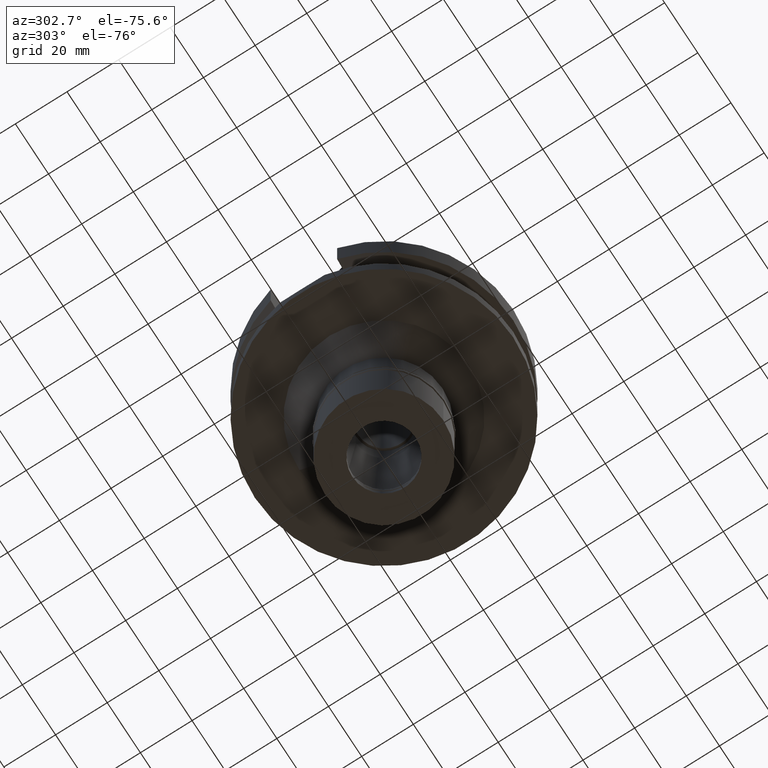
[diagram: clean part render]
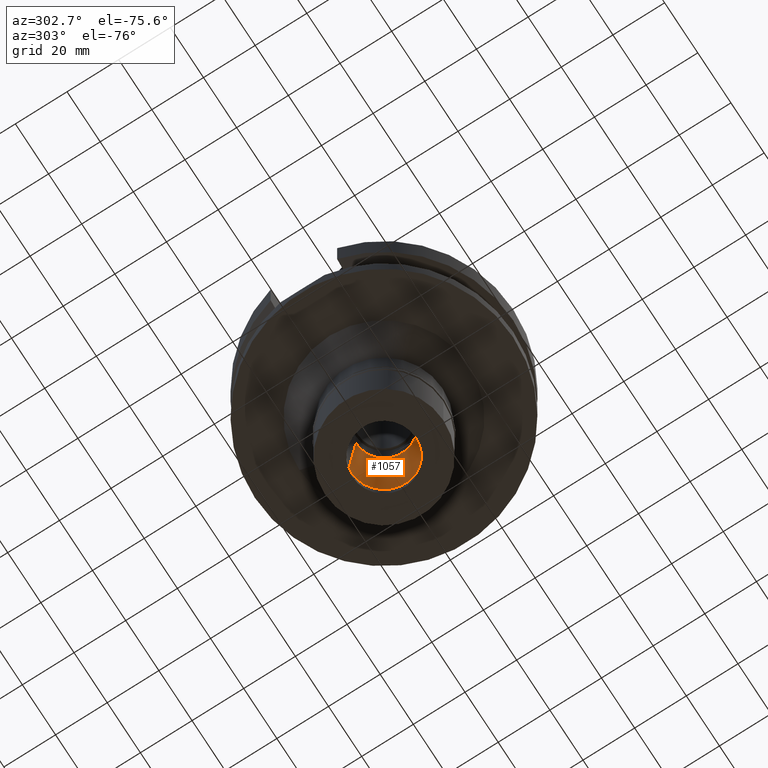
[diagram: same view with one face highlighted and labeled with its STEP entity id]
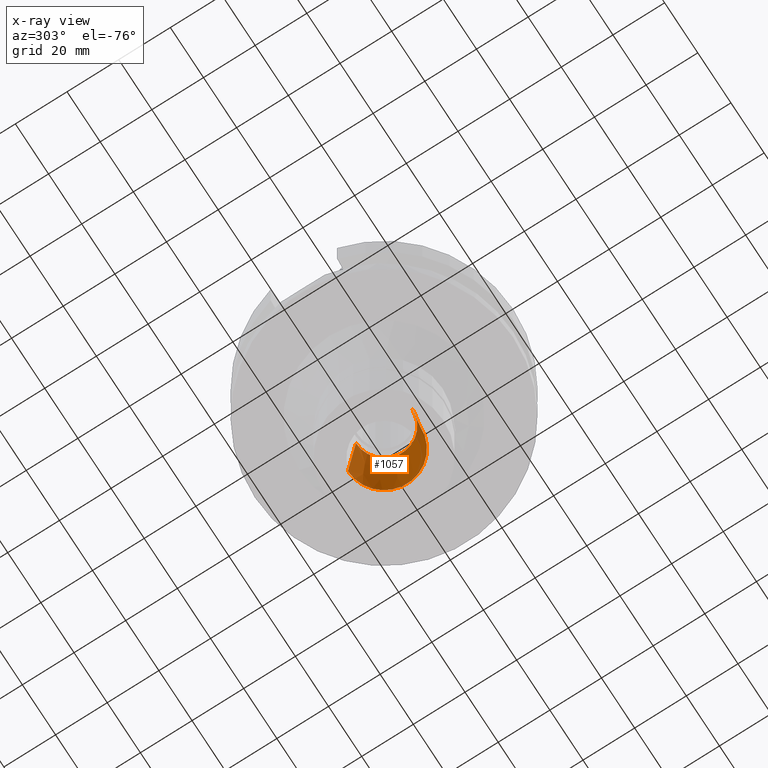
[diagram: x-ray of the same camera — body ghosted, the highlighted face saturated]
A machine part, auxiliary view. The second image highlights one B-rep face of the part: STEP entity #1057.
The next image is the same camera in x-ray: the body ghosted, the highlighted face saturated — about 3% of this face is hidden behind the body in this view.
In plain terms, the highlighted conical surface has half-angle 6 deg.
Its self-contained STEP definition (entity closure, byte-faithful):
#310 = CIRCLE ( 'NONE', #1655, 10.84687294202000096 ) ;
#490 = CARTESIAN_POINT ( 'NONE',  ( 0.0000000000000000000, 14.00000000000000000, -79.00000000000000000 ) ) ;
#498 = FACE_OUTER_BOUND ( 'NONE', #2359, .T. ) ;
#525 = VECTOR ( 'NONE', #547, 1000.000000000000227 ) ;
#547 = DIRECTION ( 'NONE',  ( 0.0000000000000000000, 0.1045284632676965891, 0.9945218953682687379 ) ) ;
#600 = CARTESIAN_POINT ( 'NONE',  ( 0.0000000000000000000, 10.84687294202000096, -49.00000000000000000 ) ) ;
#690 = ORIENTED_EDGE ( 'NONE', *, *, #1857, .T. ) ;
#788 = DIRECTION ( 'NONE',  ( 0.0000000000000000000, -0.1045284632676965891, 0.9945218953682687379 ) ) ;
#930 = ORIENTED_EDGE ( 'NONE', *, *, #2379, .T. ) ;
#938 = DIRECTION ( 'NONE',  ( 0.0000000000000000000, 1.000000000000000000, 0.0000000000000000000 ) ) ;
#1000 = CARTESIAN_POINT ( 'NONE',  ( 0.0000000000000000000, 0.0000000000000000000, -64.00000000000000000 ) ) ;
#1020 = VERTEX_POINT ( 'NONE', #2452 ) ;
#1057 = ADVANCED_FACE ( 'NONE', ( #498 ), #1709, .F. ) ;
#1068 = CARTESIAN_POINT ( 'NONE',  ( 0.0000000000000000000, -10.84687294202000096, -49.00000000000000000 ) ) ;
#1078 = VECTOR ( 'NONE', #788, 1000.000000000000227 ) ;
#1140 = CARTESIAN_POINT ( 'NONE',  ( 0.0000000000000000000, 0.0000000000000000000, -79.00000000000000000 ) ) ;
#1197 = DIRECTION ( 'NONE',  ( 0.0000000000000000000, 0.0000000000000000000, -1.000000000000000000 ) ) ;
#1253 = DIRECTION ( 'NONE',  ( 0.0000000000000000000, -1.000000000000000000, 0.0000000000000000000 ) ) ;
#1263 = LINE ( 'NONE', #2691, #525 ) ;
#1281 = CARTESIAN_POINT ( 'NONE',  ( 0.0000000000000000000, 14.00000000000000000, -79.00000000000000000 ) ) ;
#1575 = AXIS2_PLACEMENT_3D ( 'NONE', #1000, #1939, #1253 ) ;
#1655 = AXIS2_PLACEMENT_3D ( 'NONE', #2512, #2996, #2768 ) ;
#1691 = LINE ( 'NONE', #1281, #1078 ) ;
#1700 = VERTEX_POINT ( 'NONE', #490 ) ;
#1709 = CONICAL_SURFACE ( 'NONE', #1575, 12.42343647100999959, 0.1047197551196402399 ) ;
#1857 = EDGE_CURVE ( 'NONE', #2946, #2097, #310, .T. ) ;
#1939 = DIRECTION ( 'NONE',  ( 0.0000000000000000000, 0.0000000000000000000, -1.000000000000000000 ) ) ;
#2097 = VERTEX_POINT ( 'NONE', #600 ) ;
#2134 = ORIENTED_EDGE ( 'NONE', *, *, #2334, .F. ) ;
#2161 = ORIENTED_EDGE ( 'NONE', *, *, #2190, .T. ) ;
#2190 = EDGE_CURVE ( 'NONE', #1700, #1020, #2655, .T. ) ;
#2334 = EDGE_CURVE ( 'NONE', #1700, #2097, #1691, .T. ) ;
#2359 = EDGE_LOOP ( 'NONE', ( #2161, #930, #690, #2134 ) ) ;
#2379 = EDGE_CURVE ( 'NONE', #1020, #2946, #1263, .T. ) ;
#2452 = CARTESIAN_POINT ( 'NONE',  ( 0.0000000000000000000, -14.00000000000000000, -79.00000000000000000 ) ) ;
#2512 = CARTESIAN_POINT ( 'NONE',  ( 0.0000000000000000000, 0.0000000000000000000, -49.00000000000000000 ) ) ;
#2655 = CIRCLE ( 'NONE', #2918, 14.00000000000000000 ) ;
#2691 = CARTESIAN_POINT ( 'NONE',  ( 0.0000000000000000000, -14.00000000000000000, -79.00000000000000000 ) ) ;
#2768 = DIRECTION ( 'NONE',  ( 0.0000000000000000000, -1.000000000000000000, 0.0000000000000000000 ) ) ;
#2918 = AXIS2_PLACEMENT_3D ( 'NONE', #1140, #1197, #938 ) ;
#2946 = VERTEX_POINT ( 'NONE', #1068 ) ;
#2996 = DIRECTION ( 'NONE',  ( 0.0000000000000000000, 0.0000000000000000000, 1.000000000000000000 ) ) ;